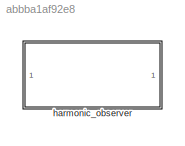
MODEL slx_abbba1af92e8
KIND library
CONFIG SolverName = VariableStepAuto
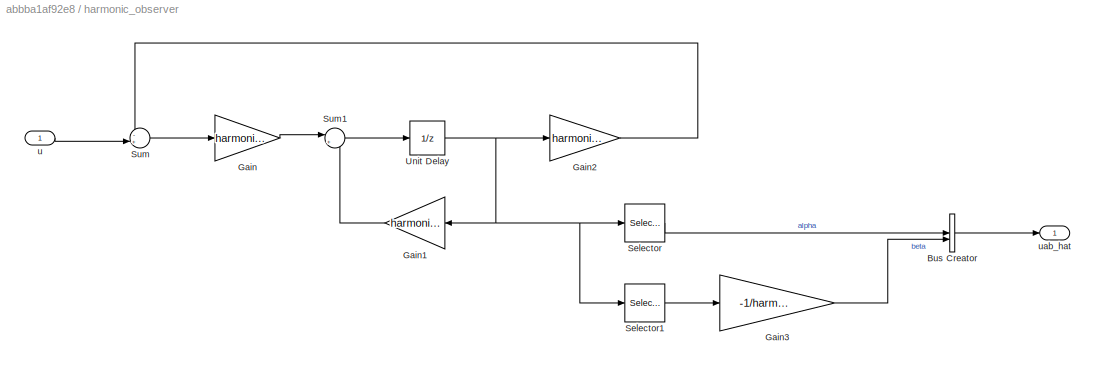
BLOCK [SubSystem] harmonic_observer
BLOCK [BusCreator] harmonic_observer/Bus Creator
  DisplayOption = bar
  InheritFromInputs = on
  Inputs = 2
BLOCK [Gain] harmonic_observer/Gain
  Gain = harmonic_obs.Ld_hobs
  Multiplication = Matrix(K*u)
BLOCK [Gain] harmonic_observer/Gain1
  Gain = harmonic_obs.Ad_hobs
  Multiplication = Matrix(K*u)
  NameLocation = top
BLOCK [Gain] harmonic_observer/Gain2
  Gain = harmonic_obs.C_hobs
  Multiplication = Matrix(K*u)
BLOCK [Gain] harmonic_observer/Gain3
  Gain = -1/harmonic_obs.omega_base
BLOCK [Selector] harmonic_observer/Selector
  IndexOptions = Index vector (dialog)
  Indices = 1
  InputPortWidth = 2
  OutputSizes = 1
BLOCK [Selector] harmonic_observer/Selector1
  IndexOptions = Index vector (dialog)
  Indices = 2
  InputPortWidth = 2
  OutputSizes = 1
BLOCK [Sum] harmonic_observer/Sum
  Inputs = -+|
BLOCK [Sum] harmonic_observer/Sum1
  Inputs = |++
BLOCK [UnitDelay] harmonic_observer/Unit Delay
  SampleTime = harmonic_obs.ts
BLOCK [Inport] harmonic_observer/u
BLOCK [Outport] harmonic_observer/uab_hat
LINE harmonic_observer/Bus Creator:1 -> harmonic_observer/uab_hat:1
LINE harmonic_observer/Gain1:1 -> harmonic_observer/Sum1:2
LINE harmonic_observer/Gain2:1 -> harmonic_observer/Sum:1
LINE harmonic_observer/Gain3:1 -> harmonic_observer/Bus Creator:2
LINE harmonic_observer/Gain:1 -> harmonic_observer/Sum1:1
LINE harmonic_observer/Selector1:1 -> harmonic_observer/Gain3:1
LINE harmonic_observer/Selector:1 -> harmonic_observer/Bus Creator:1
LINE harmonic_observer/Sum1:1 -> harmonic_observer/Unit Delay:1
LINE harmonic_observer/Sum:1 -> harmonic_observer/Gain:1
NET harmonic_observer/Unit Delay:1 -> harmonic_observer/Gain1:1, harmonic_observer/Gain2:1, harmonic_observer/Selector1:1, harmonic_observer/Selector:1
LINE harmonic_observer/u:1 -> harmonic_observer/Sum:2
note: NET lines group one-source signal fan-out (src -> all destinations, sorted); 1:1 wires keep LINE
